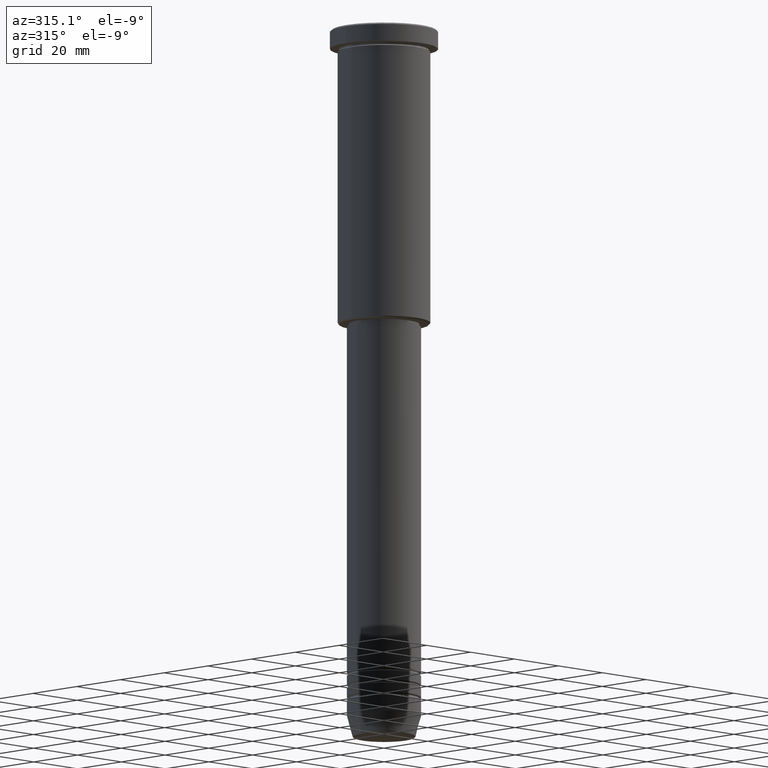
[diagram: clean part render]
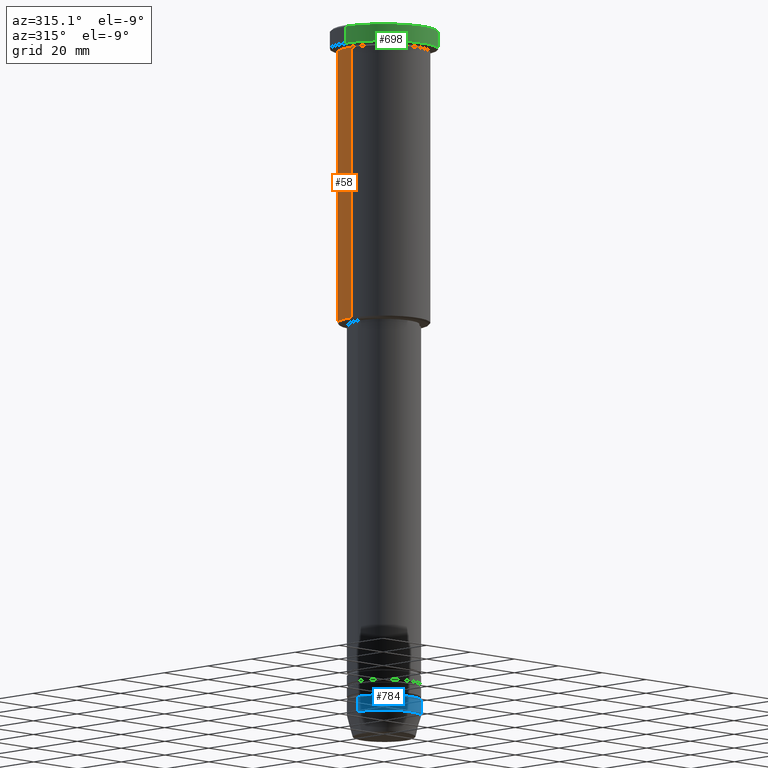
[diagram: same view with three faces highlighted in distinct colors, each labeled with its STEP entity id]
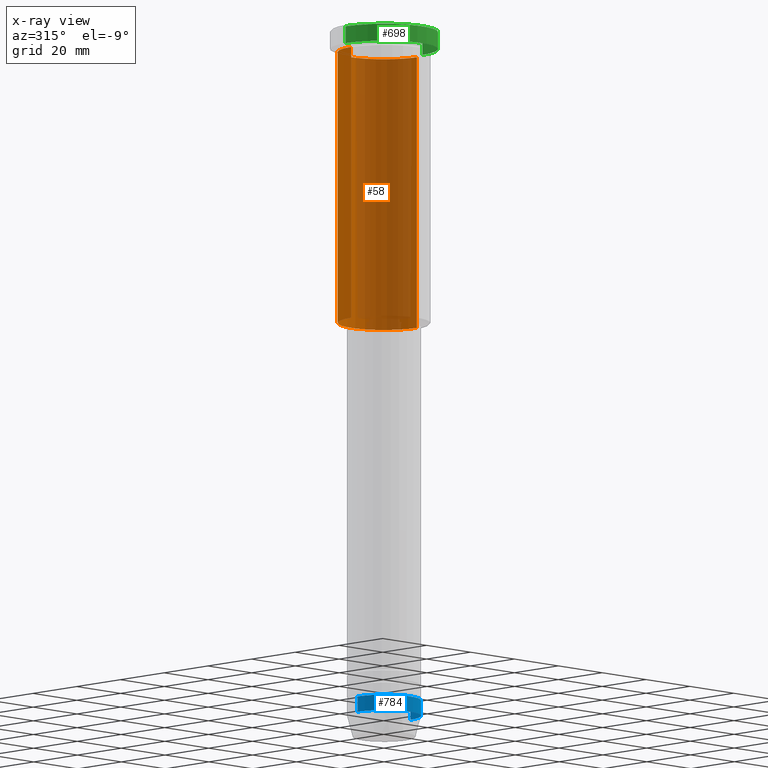
[diagram: x-ray of the same camera — body ghosted, the three highlighted faces saturated]
A machine part, auxiliary view with three faces highlighted in distinct colors.
The next image is the same camera in x-ray (body ghosted, the three faces saturated) — at least one of them is partly hidden behind the body in this view.
Their STEP definitions:

[orange] entity #58 — the highlighted cylindrical surface (partial cylindrical patch) has radius 15 mm, axis along (-0, -0, 1).
#25 = DIRECTION ( 'NONE',  ( -1.000000000000000000, 0.000000000000000000, 0.000000000000000000 ) ) ;
#58 = ADVANCED_FACE ( 'NONE', ( #71 ), #1170, .T. ) ;
#71 = FACE_OUTER_BOUND ( 'NONE', #520, .T. ) ;
#87 = DIRECTION ( 'NONE',  ( -0.000000000000000000, -0.000000000000000000, 1.000000000000000000 ) ) ;
#116 = ORIENTED_EDGE ( 'NONE', *, *, #994, .T. ) ;
#129 = LINE ( 'NONE', #480, #1163 ) ;
#154 = EDGE_CURVE ( 'NONE', #281, #490, #554, .T. ) ;
#177 = ORIENTED_EDGE ( 'NONE', *, *, #154, .F. ) ;
#281 = VERTEX_POINT ( 'NONE', #499 ) ;
#324 = AXIS2_PLACEMENT_3D ( 'NONE', #473, #842, #25 ) ;
#347 = CARTESIAN_POINT ( 'NONE',  ( 0.000000000000000000, 0.000000000000000000, 0.000000000000000000 ) ) ;
#377 = VERTEX_POINT ( 'NONE', #1049 ) ;
#439 = ORIENTED_EDGE ( 'NONE', *, *, #1133, .T. ) ;
#473 = CARTESIAN_POINT ( 'NONE',  ( 0.000000000000000000, 0.000000000000000000, -95.49999999999995737 ) ) ;
#478 = CARTESIAN_POINT ( 'NONE',  ( 15.00000000000000000, 0.000000000000000000, -95.49999999999995737 ) ) ;
#479 = VERTEX_POINT ( 'NONE', #478 ) ;
#480 = CARTESIAN_POINT ( 'NONE',  ( 15.00000000000000000, 0.000000000000000000, 0.000000000000000000 ) ) ;
#490 = VERTEX_POINT ( 'NONE', #611 ) ;
#499 = CARTESIAN_POINT ( 'NONE',  ( 15.00000000000000000, 0.000000000000000000, -6.999999999999995559 ) ) ;
#520 = EDGE_LOOP ( 'NONE', ( #439, #116, #177, #654 ) ) ;
#532 = AXIS2_PLACEMENT_3D ( 'NONE', #347, #896, #723 ) ;
#554 = CIRCLE ( 'NONE', #831, 15.00000000000000000 ) ;
#611 = CARTESIAN_POINT ( 'NONE',  ( -15.00000000000000000, 1.836970198721029589E-15, -6.999999999999995559 ) ) ;
#623 = VECTOR ( 'NONE', #1086, 1000.000000000000000 ) ;
#649 = DIRECTION ( 'NONE',  ( -0.000000000000000000, -0.000000000000000000, 1.000000000000000000 ) ) ;
#654 = ORIENTED_EDGE ( 'NONE', *, *, #927, .F. ) ;
#723 = DIRECTION ( 'NONE',  ( 1.000000000000000000, 0.000000000000000000, 0.000000000000000000 ) ) ;
#735 = DIRECTION ( 'NONE',  ( 1.000000000000000000, 0.000000000000000000, 0.000000000000000000 ) ) ;
#736 = CARTESIAN_POINT ( 'NONE',  ( -15.00000000000000000, 1.836970198721029589E-15, 0.000000000000000000 ) ) ;
#806 = LINE ( 'NONE', #736, #623 ) ;
#831 = AXIS2_PLACEMENT_3D ( 'NONE', #922, #87, #735 ) ;
#842 = DIRECTION ( 'NONE',  ( -0.000000000000000000, -0.000000000000000000, 1.000000000000000000 ) ) ;
#896 = DIRECTION ( 'NONE',  ( -0.000000000000000000, -0.000000000000000000, 1.000000000000000000 ) ) ;
#922 = CARTESIAN_POINT ( 'NONE',  ( 0.000000000000000000, 0.000000000000000000, -6.999999999999995559 ) ) ;
#927 = EDGE_CURVE ( 'NONE', #479, #281, #129, .T. ) ;
#957 = CIRCLE ( 'NONE', #324, 15.00000000000000000 ) ;
#994 = EDGE_CURVE ( 'NONE', #377, #490, #806, .T. ) ;
#1049 = CARTESIAN_POINT ( 'NONE',  ( -15.00000000000000000, 1.836970198721029589E-15, -95.49999999999995737 ) ) ;
#1086 = DIRECTION ( 'NONE',  ( -0.000000000000000000, -0.000000000000000000, 1.000000000000000000 ) ) ;
#1133 = EDGE_CURVE ( 'NONE', #479, #377, #957, .T. ) ;
#1163 = VECTOR ( 'NONE', #649, 1000.000000000000000 ) ;
#1170 = CYLINDRICAL_SURFACE ( 'NONE', #532, 15.00000000000000000 ) ;

[blue] entity #784 — the highlighted cylindrical surface (partial cylindrical patch) has radius 12 mm, axis along (-0, -0, 1).
#7 = DIRECTION ( 'NONE',  ( 1.000000000000000000, 0.000000000000000000, 0.000000000000000000 ) ) ;
#12 = DIRECTION ( 'NONE',  ( -0.000000000000000000, -0.000000000000000000, 1.000000000000000000 ) ) ;
#23 = DIRECTION ( 'NONE',  ( -0.000000000000000000, -0.000000000000000000, 1.000000000000000000 ) ) ;
#40 = DIRECTION ( 'NONE',  ( -0.000000000000000000, -0.000000000000000000, 1.000000000000000000 ) ) ;
#47 = CYLINDRICAL_SURFACE ( 'NONE', #207, 12.00000000000000000 ) ;
#62 = VERTEX_POINT ( 'NONE', #264 ) ;
#70 = CARTESIAN_POINT ( 'NONE',  ( 0.000000000000000000, 0.000000000000000000, 0.000000000000000000 ) ) ;
#115 = EDGE_CURVE ( 'NONE', #1079, #144, #914, .T. ) ;
#132 = AXIS2_PLACEMENT_3D ( 'NONE', #1180, #23, #7 ) ;
#136 = CIRCLE ( 'NONE', #297, 12.00000000000000000 ) ;
#144 = VERTEX_POINT ( 'NONE', #269 ) ;
#160 = FACE_OUTER_BOUND ( 'NONE', #680, .T. ) ;
#163 = EDGE_CURVE ( 'NONE', #547, #144, #466, .T. ) ;
#207 = AXIS2_PLACEMENT_3D ( 'NONE', #70, #1161, #232 ) ;
#220 = CARTESIAN_POINT ( 'NONE',  ( -12.00000000000000000, 1.469576158976823947E-15, -219.0000000000000568 ) ) ;
#232 = DIRECTION ( 'NONE',  ( 1.000000000000000000, 0.000000000000000000, 0.000000000000000000 ) ) ;
#247 = EDGE_CURVE ( 'NONE', #62, #547, #539, .T. ) ;
#264 = CARTESIAN_POINT ( 'NONE',  ( -12.00000000000000000, 1.469576158976823947E-15, -224.0000000000000284 ) ) ;
#269 = CARTESIAN_POINT ( 'NONE',  ( 12.00000000000000000, 0.000000000000000000, -219.0000000000000568 ) ) ;
#287 = CARTESIAN_POINT ( 'NONE',  ( 12.00000000000000000, 0.000000000000000000, -224.0000000000000284 ) ) ;
#297 = AXIS2_PLACEMENT_3D ( 'NONE', #954, #40, #870 ) ;
#328 = ORIENTED_EDGE ( 'NONE', *, *, #163, .F. ) ;
#408 = ORIENTED_EDGE ( 'NONE', *, *, #247, .F. ) ;
#459 = CARTESIAN_POINT ( 'NONE',  ( -12.00000000000000000, 1.469576158976823947E-15, 0.000000000000000000 ) ) ;
#466 = CIRCLE ( 'NONE', #132, 12.00000000000000000 ) ;
#471 = CARTESIAN_POINT ( 'NONE',  ( 12.00000000000000000, 0.000000000000000000, 0.000000000000000000 ) ) ;
#539 = LINE ( 'NONE', #459, #852 ) ;
#547 = VERTEX_POINT ( 'NONE', #220 ) ;
#551 = EDGE_CURVE ( 'NONE', #62, #1079, #136, .T. ) ;
#680 = EDGE_LOOP ( 'NONE', ( #408, #724, #862, #328 ) ) ;
#724 = ORIENTED_EDGE ( 'NONE', *, *, #551, .T. ) ;
#784 = ADVANCED_FACE ( 'NONE', ( #160 ), #47, .T. ) ;
#852 = VECTOR ( 'NONE', #12, 1000.000000000000000 ) ;
#862 = ORIENTED_EDGE ( 'NONE', *, *, #115, .T. ) ;
#870 = DIRECTION ( 'NONE',  ( 1.000000000000000000, 0.000000000000000000, 0.000000000000000000 ) ) ;
#914 = LINE ( 'NONE', #471, #1143 ) ;
#954 = CARTESIAN_POINT ( 'NONE',  ( 0.000000000000000000, 0.000000000000000000, -224.0000000000000284 ) ) ;
#1002 = DIRECTION ( 'NONE',  ( -0.000000000000000000, -0.000000000000000000, 1.000000000000000000 ) ) ;
#1079 = VERTEX_POINT ( 'NONE', #287 ) ;
#1143 = VECTOR ( 'NONE', #1002, 1000.000000000000000 ) ;
#1161 = DIRECTION ( 'NONE',  ( -0.000000000000000000, -0.000000000000000000, 1.000000000000000000 ) ) ;
#1180 = CARTESIAN_POINT ( 'NONE',  ( 0.000000000000000000, 0.000000000000000000, -219.0000000000000568 ) ) ;

[green] entity #698 — the highlighted cylindrical surface (partial cylindrical patch) has radius 17.5 mm, axis along (-0, -0, 1).
#84 = CARTESIAN_POINT ( 'NONE',  ( -17.50000000000000000, 2.143131898507868248E-15, -0.4999999999999449329 ) ) ;
#111 = AXIS2_PLACEMENT_3D ( 'NONE', #123, #748, #1120 ) ;
#123 = CARTESIAN_POINT ( 'NONE',  ( 0.000000000000000000, 0.000000000000000000, -5.999999999999995559 ) ) ;
#150 = CARTESIAN_POINT ( 'NONE',  ( 0.000000000000000000, 0.000000000000000000, 0.000000000000000000 ) ) ;
#158 = AXIS2_PLACEMENT_3D ( 'NONE', #779, #1041, #249 ) ;
#164 = DIRECTION ( 'NONE',  ( -0.000000000000000000, -0.000000000000000000, 1.000000000000000000 ) ) ;
#228 = EDGE_CURVE ( 'NONE', #383, #964, #765, .T. ) ;
#249 = DIRECTION ( 'NONE',  ( 1.000000000000000000, 0.000000000000000000, 0.000000000000000000 ) ) ;
#327 = CYLINDRICAL_SURFACE ( 'NONE', #910, 17.50000000000000000 ) ;
#333 = DIRECTION ( 'NONE',  ( -0.000000000000000000, -0.000000000000000000, 1.000000000000000000 ) ) ;
#346 = ORIENTED_EDGE ( 'NONE', *, *, #228, .T. ) ;
#354 = VECTOR ( 'NONE', #164, 1000.000000000000000 ) ;
#361 = ORIENTED_EDGE ( 'NONE', *, *, #1156, .T. ) ;
#383 = VERTEX_POINT ( 'NONE', #845 ) ;
#430 = VECTOR ( 'NONE', #333, 1000.000000000000000 ) ;
#455 = DIRECTION ( 'NONE',  ( -0.000000000000000000, -0.000000000000000000, 1.000000000000000000 ) ) ;
#457 = VERTEX_POINT ( 'NONE', #652 ) ;
#493 = VERTEX_POINT ( 'NONE', #84 ) ;
#526 = ORIENTED_EDGE ( 'NONE', *, *, #734, .T. ) ;
#652 = CARTESIAN_POINT ( 'NONE',  ( 17.50000000000000000, 0.000000000000000000, -0.4999999999999449329 ) ) ;
#698 = ADVANCED_FACE ( 'NONE', ( #1038 ), #327, .T. ) ;
#704 = LINE ( 'NONE', #792, #430 ) ;
#718 = DIRECTION ( 'NONE',  ( 1.000000000000000000, 0.000000000000000000, 0.000000000000000000 ) ) ;
#734 = EDGE_CURVE ( 'NONE', #964, #457, #704, .T. ) ;
#748 = DIRECTION ( 'NONE',  ( -0.000000000000000000, -0.000000000000000000, 1.000000000000000000 ) ) ;
#765 = CIRCLE ( 'NONE', #111, 17.50000000000000000 ) ;
#779 = CARTESIAN_POINT ( 'NONE',  ( 0.000000000000000000, 0.000000000000000000, -0.4999999999999449329 ) ) ;
#792 = CARTESIAN_POINT ( 'NONE',  ( 17.50000000000000000, 0.000000000000000000, 0.000000000000000000 ) ) ;
#845 = CARTESIAN_POINT ( 'NONE',  ( -17.50000000000000000, 2.143131898507868248E-15, -5.999999999999995559 ) ) ;
#858 = CIRCLE ( 'NONE', #158, 17.50000000000000000 ) ;
#910 = AXIS2_PLACEMENT_3D ( 'NONE', #150, #455, #718 ) ;
#964 = VERTEX_POINT ( 'NONE', #1155 ) ;
#987 = CARTESIAN_POINT ( 'NONE',  ( -17.50000000000000000, 2.143131898507868248E-15, 0.000000000000000000 ) ) ;
#988 = EDGE_LOOP ( 'NONE', ( #1060, #346, #526, #361 ) ) ;
#1020 = EDGE_CURVE ( 'NONE', #383, #493, #1076, .T. ) ;
#1038 = FACE_OUTER_BOUND ( 'NONE', #988, .T. ) ;
#1041 = DIRECTION ( 'NONE',  ( 0.000000000000000000, 0.000000000000000000, -1.000000000000000000 ) ) ;
#1060 = ORIENTED_EDGE ( 'NONE', *, *, #1020, .F. ) ;
#1076 = LINE ( 'NONE', #987, #354 ) ;
#1120 = DIRECTION ( 'NONE',  ( 1.000000000000000000, 0.000000000000000000, 0.000000000000000000 ) ) ;
#1155 = CARTESIAN_POINT ( 'NONE',  ( 17.50000000000000000, 0.000000000000000000, -5.999999999999995559 ) ) ;
#1156 = EDGE_CURVE ( 'NONE', #457, #493, #858, .T. ) ;